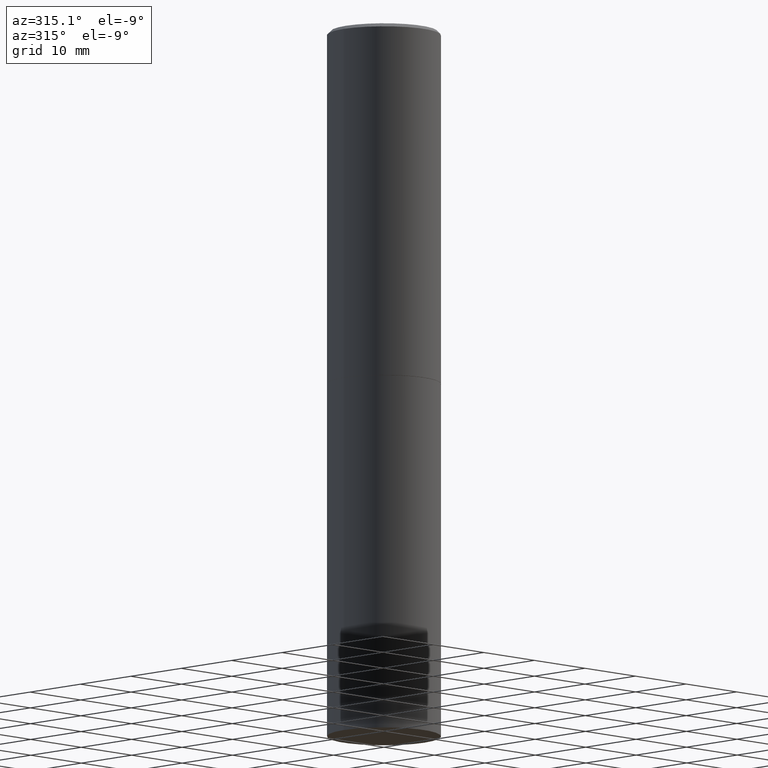
[diagram: clean part render]
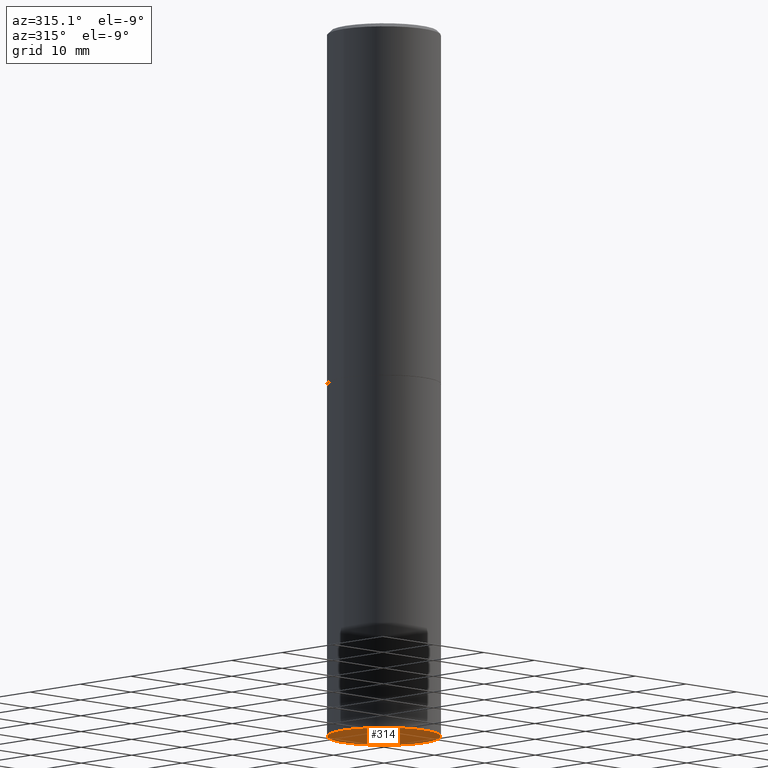
[diagram: same view with one face highlighted and labeled with its STEP entity id]
A machine part, auxiliary view. The second image highlights one B-rep face of the part: STEP entity #314.
In plain terms, the highlighted planar face has unit normal (0, -0, -1).
Its self-contained STEP definition (entity closure, byte-faithful):
#1 = DIRECTION ( 'NONE',  ( 1.000000000000000000, -6.982962677686269866E-15, 0.000000000000000000 ) ) ;
#8 = CARTESIAN_POINT ( 'NONE',  ( 9.627810689950883669E-29, -1.374596203102546341E-14, -3.937000000000000277 ) ) ;
#17 = FACE_OUTER_BOUND ( 'NONE', #322, .T. ) ;
#36 = AXIS2_PLACEMENT_3D ( 'NONE', #8, #233, #1 ) ;
#50 = CARTESIAN_POINT ( 'NONE',  ( 9.627810689950883669E-29, -1.374596203102546341E-14, -3.937000000000000277 ) ) ;
#76 = ORIENTED_EDGE ( 'NONE', *, *, #166, .F. ) ;
#78 = CARTESIAN_POINT ( 'NONE',  ( -0.3149500000000000077, -8.071617176992661576E-15, -3.937000000000000277 ) ) ;
#83 = CIRCLE ( 'NONE', #297, 0.3149500000000000077 ) ;
#84 = CARTESIAN_POINT ( 'NONE',  ( 0.3149500000000000077, -1.594524612636275486E-14, -3.937000000000000277 ) ) ;
#96 = DIRECTION ( 'NONE',  ( 1.000000000000000000, -6.982962677686269866E-15, 0.000000000000000000 ) ) ;
#139 = DIRECTION ( 'NONE',  ( 2.438088387897960049E-29, -3.491481338843145188E-15, -1.000000000000000000 ) ) ;
#159 = CIRCLE ( 'NONE', #36, 0.3149500000000000077 ) ;
#166 = EDGE_CURVE ( 'NONE', #172, #303, #159, .T. ) ;
#167 = AXIS2_PLACEMENT_3D ( 'NONE', #185, #139, #328 ) ;
#170 = DIRECTION ( 'NONE',  ( -2.445468806185136597E-29, 3.491481338843145583E-15, 1.000000000000000000 ) ) ;
#172 = VERTEX_POINT ( 'NONE', #84 ) ;
#179 = EDGE_CURVE ( 'NONE', #303, #172, #83, .T. ) ;
#185 = CARTESIAN_POINT ( 'NONE',  ( 2.199284095337385323E-15, 0.3149499999999862965, -3.937000000000001165 ) ) ;
#216 = PLANE ( 'NONE',  #167 ) ;
#233 = DIRECTION ( 'NONE',  ( -2.445468806185136597E-29, 3.491481338843145583E-15, 1.000000000000000000 ) ) ;
#297 = AXIS2_PLACEMENT_3D ( 'NONE', #50, #170, #96 ) ;
#303 = VERTEX_POINT ( 'NONE', #78 ) ;
#314 = ADVANCED_FACE ( 'NONE', ( #17 ), #216, .T. ) ;
#322 = EDGE_LOOP ( 'NONE', ( #76, #329 ) ) ;
#328 = DIRECTION ( 'NONE',  ( -1.000000000000000000, 6.982962677686265922E-15, -4.876176775795935793E-29 ) ) ;
#329 = ORIENTED_EDGE ( 'NONE', *, *, #179, .F. ) ;